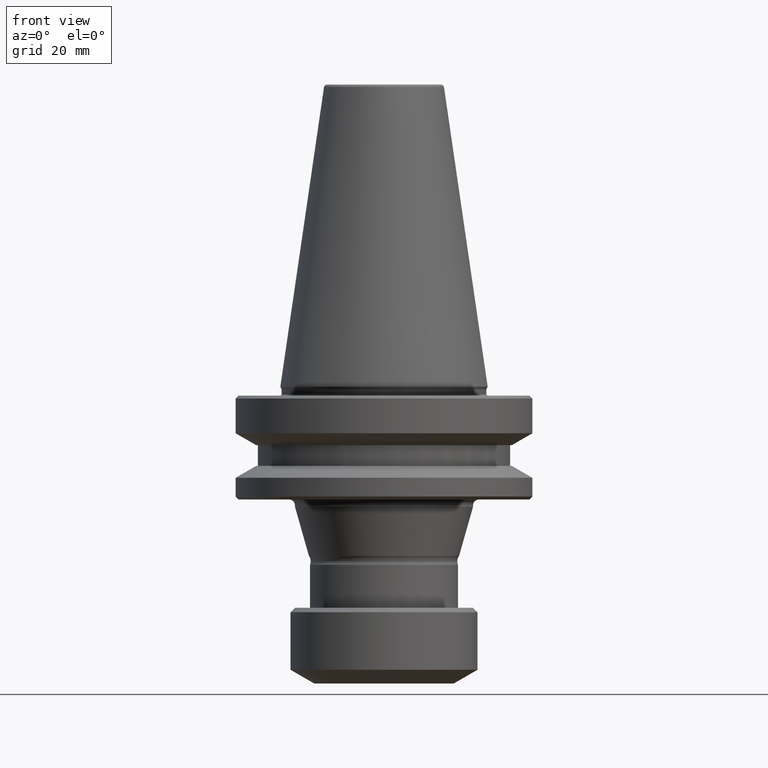
[diagram: clean part render]
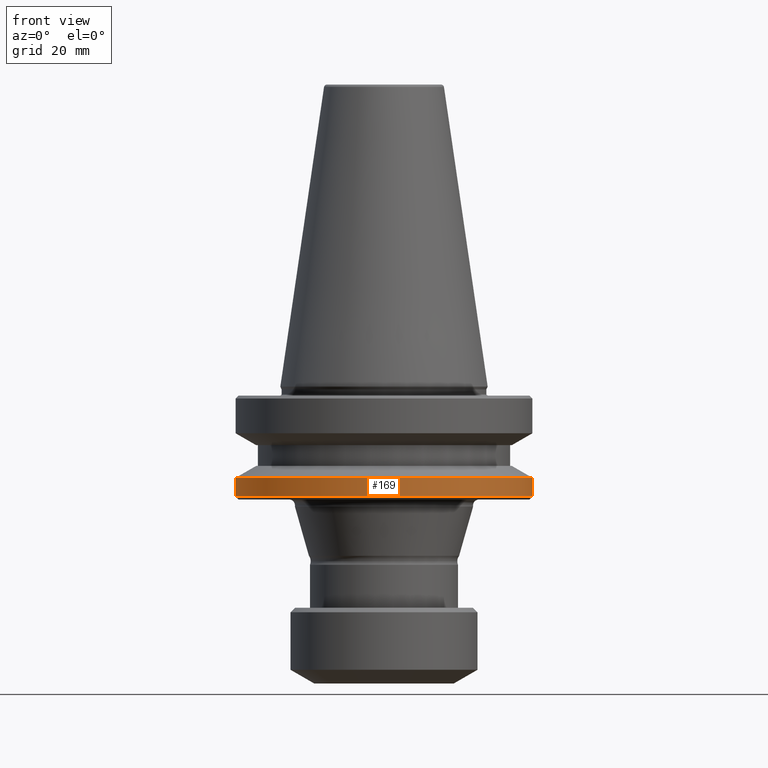
[diagram: same view with one face highlighted and labeled with its STEP entity id]
A machine part, front view. The second image highlights one B-rep face of the part: STEP entity #169.
In plain terms, the highlighted cylindrical surface (partial cylindrical patch) has radius 50 mm, axis along (-0, -0, 1).
Its self-contained STEP definition (entity closure, byte-faithful):
#3 = DIRECTION ( 'NONE',  ( -0.0000000000000000000, -0.0000000000000000000, 1.000000000000000000 ) ) ;
#17 = CARTESIAN_POINT ( 'NONE',  ( 0.0000000000000000000, 0.0000000000000000000, -37.00000000000182600 ) ) ;
#48 = LINE ( 'NONE', #135, #552 ) ;
#57 = EDGE_LOOP ( 'NONE', ( #1084, #645, #1320, #154 ) ) ;
#119 = LINE ( 'NONE', #450, #831 ) ;
#135 = CARTESIAN_POINT ( 'NONE',  ( -49.99999999999993600, 6.123233995736758200E-015, 117.7912044257657300 ) ) ;
#151 = DIRECTION ( 'NONE',  ( -0.0000000000000000000, -0.0000000000000000000, 1.000000000000000000 ) ) ;
#154 = ORIENTED_EDGE ( 'NONE', *, *, #201, .F. ) ;
#169 = ADVANCED_FACE ( 'NONE', ( #1018 ), #208, .T. ) ;
#201 = EDGE_CURVE ( 'NONE', #399, #1204, #984, .T. ) ;
#208 = CYLINDRICAL_SURFACE ( 'NONE', #641, 49.99999999999993600 ) ;
#317 = EDGE_CURVE ( 'NONE', #489, #756, #414, .T. ) ;
#364 = EDGE_CURVE ( 'NONE', #489, #399, #48, .T. ) ;
#399 = VERTEX_POINT ( 'NONE', #1246 ) ;
#414 = CIRCLE ( 'NONE', #514, 49.99999999999993600 ) ;
#426 = DIRECTION ( 'NONE',  ( -0.0000000000000000000, -0.0000000000000000000, 1.000000000000000000 ) ) ;
#450 = CARTESIAN_POINT ( 'NONE',  ( 49.99999999999993600, 0.0000000000000000000, 117.7912044257657300 ) ) ;
#489 = VERTEX_POINT ( 'NONE', #769 ) ;
#508 = CARTESIAN_POINT ( 'NONE',  ( 49.99999999999993600, 0.0000000000000000000, -37.00000000000182600 ) ) ;
#514 = AXIS2_PLACEMENT_3D ( 'NONE', #17, #426, #973 ) ;
#549 = DIRECTION ( 'NONE',  ( 1.000000000000000000, 0.0000000000000000000, 0.0000000000000000000 ) ) ;
#552 = VECTOR ( 'NONE', #3, 1000.000000000000000 ) ;
#605 = DIRECTION ( 'NONE',  ( 1.000000000000000000, 0.0000000000000000000, 0.0000000000000000000 ) ) ;
#627 = CARTESIAN_POINT ( 'NONE',  ( 0.0000000000000000000, 0.0000000000000000000, 117.7912044257657300 ) ) ;
#638 = EDGE_CURVE ( 'NONE', #756, #1204, #119, .T. ) ;
#641 = AXIS2_PLACEMENT_3D ( 'NONE', #627, #1095, #549 ) ;
#645 = ORIENTED_EDGE ( 'NONE', *, *, #317, .T. ) ;
#667 = CARTESIAN_POINT ( 'NONE',  ( 49.99999999999993600, 0.0000000000000000000, -30.69977999677488300 ) ) ;
#755 = AXIS2_PLACEMENT_3D ( 'NONE', #829, #151, #605 ) ;
#756 = VERTEX_POINT ( 'NONE', #508 ) ;
#769 = CARTESIAN_POINT ( 'NONE',  ( -49.99999999999993600, 6.123233995736758200E-015, -37.00000000000182600 ) ) ;
#829 = CARTESIAN_POINT ( 'NONE',  ( 0.0000000000000000000, 0.0000000000000000000, -30.69977999677488300 ) ) ;
#831 = VECTOR ( 'NONE', #1252, 1000.000000000000000 ) ;
#973 = DIRECTION ( 'NONE',  ( 1.000000000000000000, 0.0000000000000000000, 0.0000000000000000000 ) ) ;
#984 = CIRCLE ( 'NONE', #755, 49.99999999999993600 ) ;
#1018 = FACE_OUTER_BOUND ( 'NONE', #57, .T. ) ;
#1084 = ORIENTED_EDGE ( 'NONE', *, *, #364, .F. ) ;
#1095 = DIRECTION ( 'NONE',  ( -0.0000000000000000000, -0.0000000000000000000, 1.000000000000000000 ) ) ;
#1204 = VERTEX_POINT ( 'NONE', #667 ) ;
#1246 = CARTESIAN_POINT ( 'NONE',  ( -49.99999999999993600, 6.123233995736758200E-015, -30.69977999677488300 ) ) ;
#1252 = DIRECTION ( 'NONE',  ( -0.0000000000000000000, -0.0000000000000000000, 1.000000000000000000 ) ) ;
#1320 = ORIENTED_EDGE ( 'NONE', *, *, #638, .T. ) ;